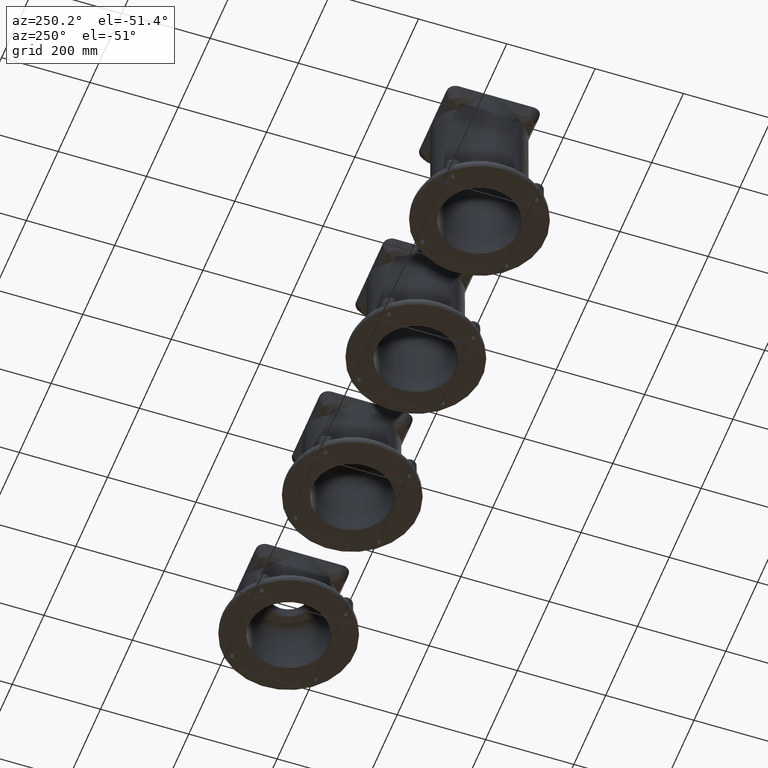
[diagram: clean part render]
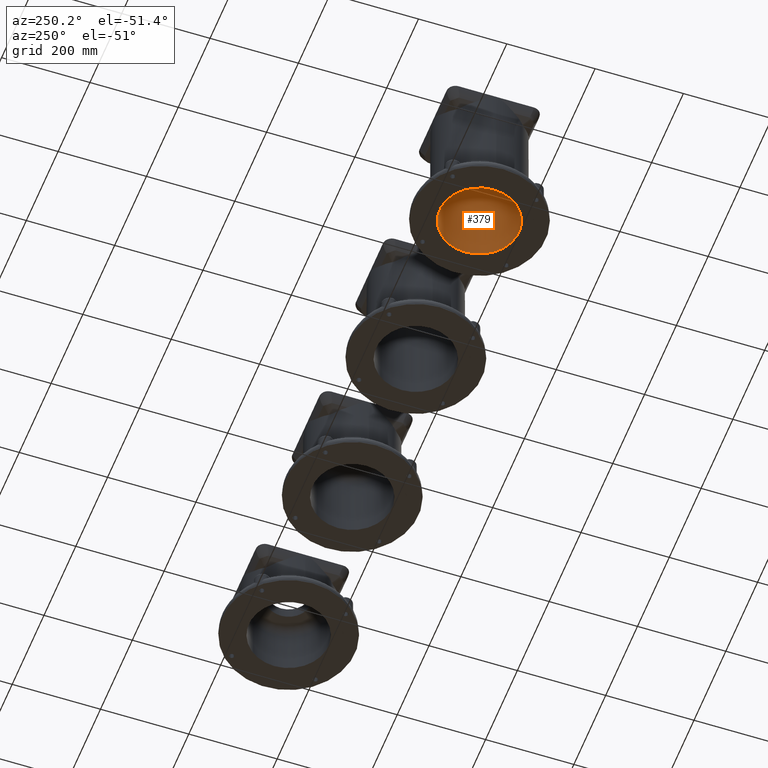
[diagram: same view with one face highlighted and labeled with its STEP entity id]
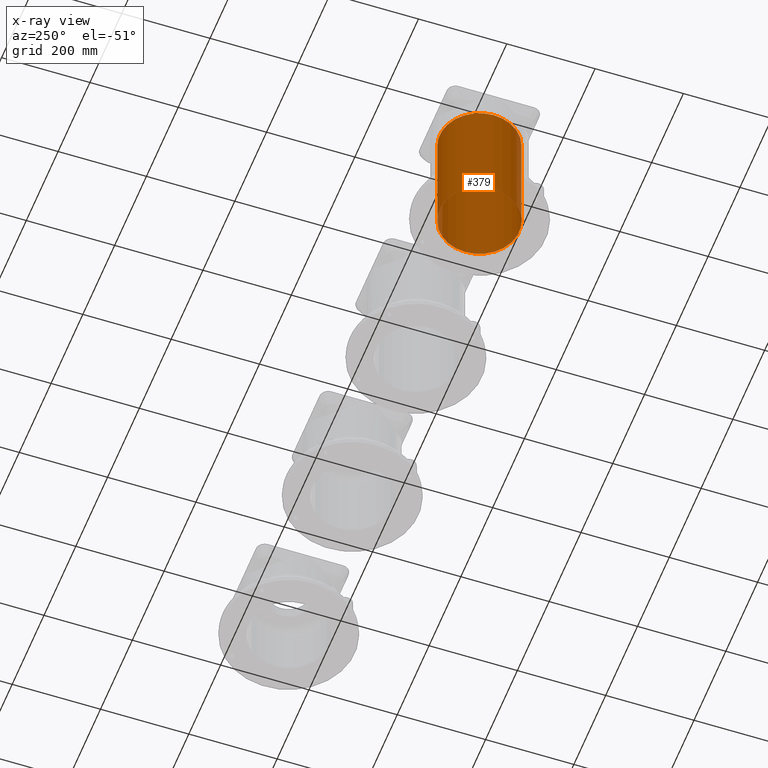
[diagram: x-ray of the same camera — body ghosted, the highlighted face saturated]
A machine part, auxiliary view. The second image highlights one B-rep face of the part: STEP entity #379.
The next image is the same camera in x-ray: the body ghosted, the highlighted face saturated — about 0% of this face is hidden behind the body in this view.
In plain terms, the highlighted cylindrical surface (bore or boss wall) has radius 90 mm, axis along (-0, 0, 1).
Its self-contained STEP definition (entity closure, byte-faithful):
#379=ADVANCED_FACE('',(#843,#844),#845,.F.);
#843=FACE_OUTER_BOUND('',#2404,.T.);
#844=FACE_OUTER_BOUND('',#2405,.T.);
#845=CYLINDRICAL_SURFACE('',#2406,90.0);
#2404=EDGE_LOOP('',(#7479));
#2405=EDGE_LOOP('',(#7480));
#2406=AXIS2_PLACEMENT_3D('',#7481,#7482,#7483);
#7479=ORIENTED_EDGE('',*,*,#10242,.F.);
#7480=ORIENTED_EDGE('',*,*,#10243,.T.);
#7481=CARTESIAN_POINT('',(0.0,0.0,85.0));
#7482=DIRECTION('',(0.0,0.0,-1.0));
#7483=DIRECTION('',(-1.0,0.0,0.0));
#10242=EDGE_CURVE('',#11348,#11348,#11349,.T.);
#10243=EDGE_CURVE('',#11350,#11350,#11351,.T.);
#11348=VERTEX_POINT('',#14308);
#11349=CIRCLE('',#14309,90.0);
#11350=VERTEX_POINT('',#14310);
#11351=CIRCLE('',#14311,90.0);
#14308=CARTESIAN_POINT('',(90.0,0.0,-170.0));
#14309=AXIS2_PLACEMENT_3D('',#21073,#21074,#21075);
#14310=CARTESIAN_POINT('',(90.0,0.0,85.0));
#14311=AXIS2_PLACEMENT_3D('',#21076,#21077,#21078);
#21073=CARTESIAN_POINT('',(0.0,0.0,-170.0));
#21074=DIRECTION('',(0.0,0.0,1.0));
#21075=DIRECTION('',(1.0,0.0,0.0));
#21076=CARTESIAN_POINT('',(0.0,0.0,85.0));
#21077=DIRECTION('',(0.0,0.0,1.0));
#21078=DIRECTION('',(1.0,0.0,0.0));